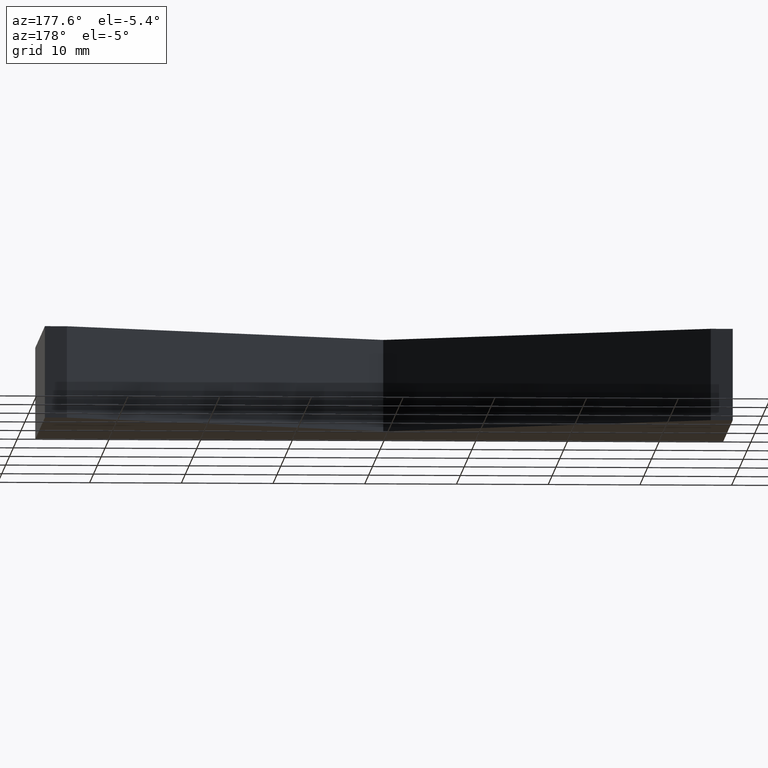
[diagram: clean part render]
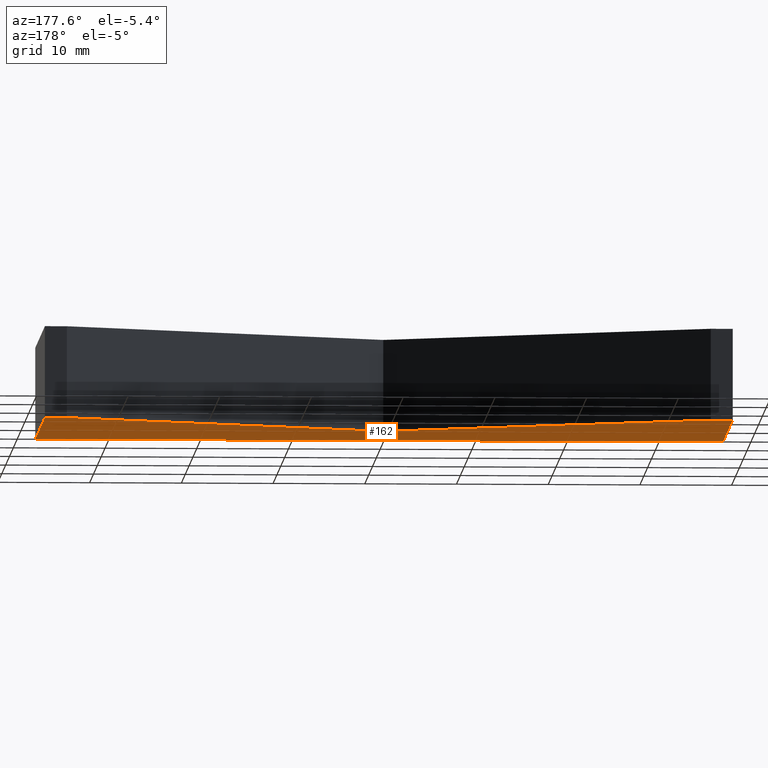
[diagram: same view with one face highlighted and labeled with its STEP entity id]
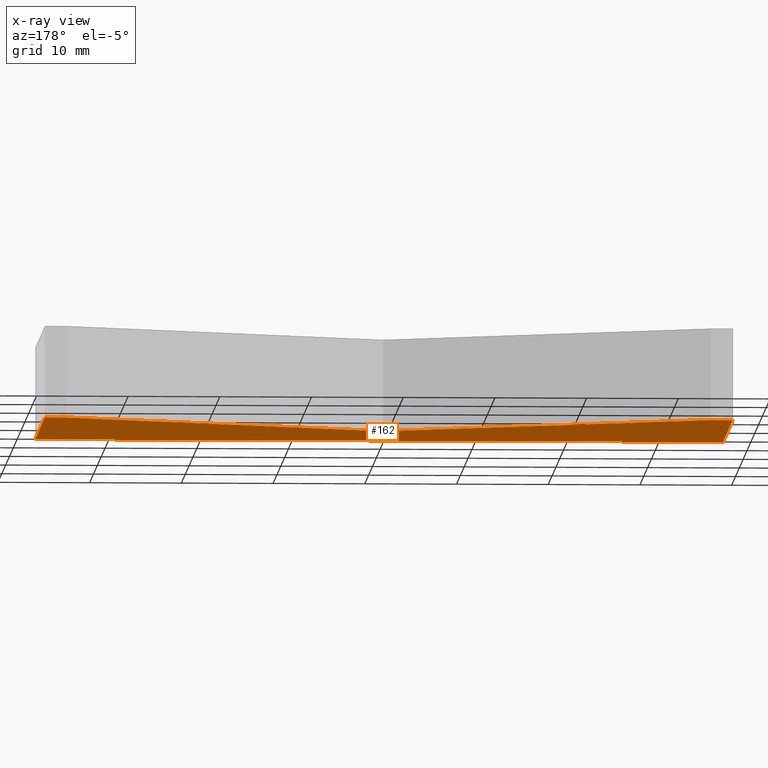
[diagram: x-ray of the same camera — body ghosted, the highlighted face saturated]
A machine part, auxiliary view. The second image highlights one B-rep face of the part: STEP entity #162.
The next image is the same camera in x-ray: the body ghosted, the highlighted face saturated — about 0% of this face is hidden behind the body in this view.
In plain terms, the highlighted planar face has unit normal (0, 0, 1).
Its self-contained STEP definition (entity closure, byte-faithful):
#16=FACE_OUTER_BOUND('',#25,.T.);
#25=EDGE_LOOP('',(#111,#112,#113,#114,#115,#116,#117));
#34=LINE('',#248,#55);
#35=LINE('',#250,#56);
#36=LINE('',#252,#57);
#37=LINE('',#254,#58);
#38=LINE('',#256,#59);
#39=LINE('',#258,#60);
#40=LINE('',#259,#61);
#55=VECTOR('',#207,10.);
#56=VECTOR('',#208,10.);
#57=VECTOR('',#209,10.);
#58=VECTOR('',#210,10.);
#59=VECTOR('',#211,10.);
#60=VECTOR('',#212,10.);
#61=VECTOR('',#213,10.);
#76=VERTEX_POINT('',#246);
#77=VERTEX_POINT('',#247);
#78=VERTEX_POINT('',#249);
#79=VERTEX_POINT('',#251);
#80=VERTEX_POINT('',#253);
#81=VERTEX_POINT('',#255);
#82=VERTEX_POINT('',#257);
#90=EDGE_CURVE('',#76,#77,#34,.T.);
#91=EDGE_CURVE('',#78,#76,#35,.T.);
#92=EDGE_CURVE('',#79,#78,#36,.T.);
#93=EDGE_CURVE('',#80,#79,#37,.T.);
#94=EDGE_CURVE('',#81,#80,#38,.T.);
#95=EDGE_CURVE('',#82,#81,#39,.T.);
#96=EDGE_CURVE('',#77,#82,#40,.T.);
#111=ORIENTED_EDGE('',*,*,#90,.F.);
#112=ORIENTED_EDGE('',*,*,#91,.F.);
#113=ORIENTED_EDGE('',*,*,#92,.F.);
#114=ORIENTED_EDGE('',*,*,#93,.F.);
#115=ORIENTED_EDGE('',*,*,#94,.F.);
#116=ORIENTED_EDGE('',*,*,#95,.F.);
#117=ORIENTED_EDGE('',*,*,#96,.F.);
#153=PLANE('',#194);
#162=ADVANCED_FACE('',(#16),#153,.F.);
#194=AXIS2_PLACEMENT_3D('',#245,#205,#206);
#205=DIRECTION('center_axis',(0.,0.,1.));
#206=DIRECTION('ref_axis',(1.,0.,0.));
#207=DIRECTION('',(-1.,0.,0.));
#208=DIRECTION('',(-0.925168618374746,0.379556356256306,0.));
#209=DIRECTION('',(-0.925168618374746,-0.379556356256306,0.));
#210=DIRECTION('',(-1.,0.,0.));
#211=DIRECTION('',(0.,1.,0.));
#212=DIRECTION('',(1.,0.,0.));
#213=DIRECTION('',(0.,-1.,0.));
#245=CARTESIAN_POINT('Origin',(-9.0205620750794E-16,-2.31111807193507,-5.));
#246=CARTESIAN_POINT('',(-35.1,12.5,-5.));
#247=CARTESIAN_POINT('',(-37.5,12.5,-5.));
#248=CARTESIAN_POINT('',(-35.1,12.5,-5.));
#249=CARTESIAN_POINT('',(0.,-1.9,-5.));
#250=CARTESIAN_POINT('',(0.,-1.9,-5.));
#251=CARTESIAN_POINT('',(35.1,12.5,-5.));
#252=CARTESIAN_POINT('',(35.1,12.5,-5.));
#253=CARTESIAN_POINT('',(37.5,12.5,-5.));
#254=CARTESIAN_POINT('',(37.5,12.5,-5.));
#255=CARTESIAN_POINT('',(37.5,-12.5,-5.));
#256=CARTESIAN_POINT('',(37.5,-12.5,-5.));
#257=CARTESIAN_POINT('',(-37.5,-12.5,-5.));
#258=CARTESIAN_POINT('',(-37.5,-12.5,-5.));
#259=CARTESIAN_POINT('',(-37.5,12.5,-5.));